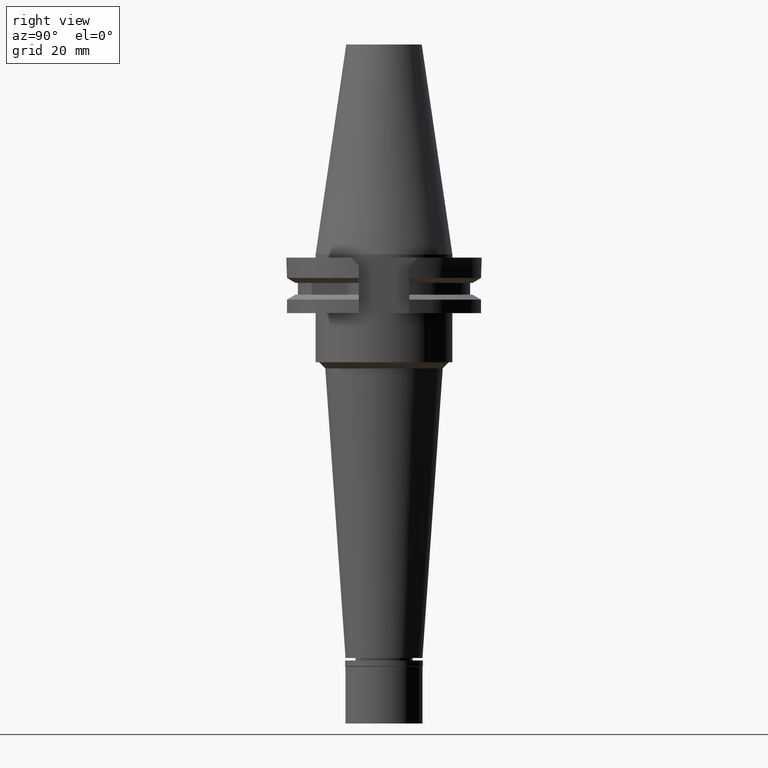
[diagram: clean part render]
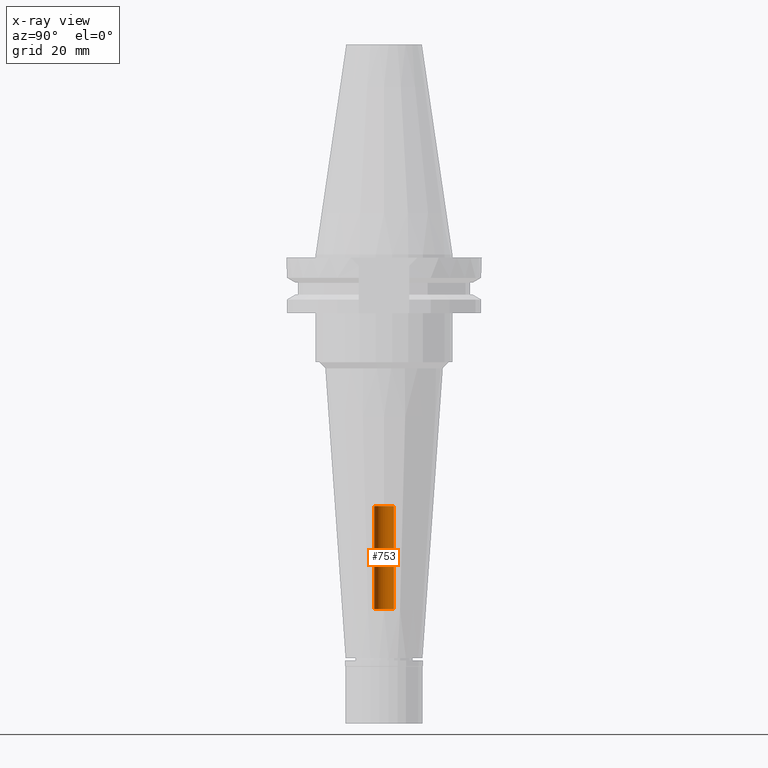
[diagram: x-ray — body ghosted, one internal face saturated and labeled with its STEP entity id]
A machine part, right view, then the same camera in x-ray: the body is ghosted and one INTERNAL B-rep face — a face not visible from any outside direction — is saturated and labeled: STEP entity #753.
In plain terms, the highlighted cylindrical surface (edge-blend (fillet) strip) has radius 3.2 mm, axis along (0, 0, -1).
Its self-contained STEP definition (entity closure, byte-faithful):
#34 = ORIENTED_EDGE ( 'NONE', *, *, #3211, .T. ) ;
#90 = ORIENTED_EDGE ( 'NONE', *, *, #1240, .T. ) ;
#227 = DIRECTION ( 'NONE',  ( 0.0000000000000000000, 0.0000000000000000000, -1.000000000000000000 ) ) ;
#499 = DIRECTION ( 'NONE',  ( 0.0000000000000000000, -1.000000000000000000, 0.0000000000000000000 ) ) ;
#723 = LINE ( 'NONE', #1482, #2876 ) ;
#729 = DIRECTION ( 'NONE',  ( 0.0000000000000000000, 1.000000000000000000, 0.0000000000000000000 ) ) ;
#753 = ADVANCED_FACE ( 'NONE', ( #3086 ), #3355, .F. ) ;
#762 = CARTESIAN_POINT ( 'NONE',  ( 0.0000000000000000000, 2.191780992603999821E-14, 78.97249999999999659 ) ) ;
#1000 = CARTESIAN_POINT ( 'NONE',  ( 0.0000000000000000000, 3.200000000000000178, -115.2000000000000028 ) ) ;
#1097 = DIRECTION ( 'NONE',  ( 0.0000000000000000000, -1.000000000000000000, 0.0000000000000000000 ) ) ;
#1123 = AXIS2_PLACEMENT_3D ( 'NONE', #762, #1805, #499 ) ;
#1187 = VECTOR ( 'NONE', #2833, 1000.000000000000000 ) ;
#1226 = CIRCLE ( 'NONE', #3231, 3.200000000000000178 ) ;
#1240 = EDGE_CURVE ( 'NONE', #2943, #2745, #1226, .T. ) ;
#1260 = VERTEX_POINT ( 'NONE', #2315 ) ;
#1482 = CARTESIAN_POINT ( 'NONE',  ( 0.0000000000000000000, 3.200000000000000178, -115.2000000000000028 ) ) ;
#1640 = CARTESIAN_POINT ( 'NONE',  ( 0.0000000000000000000, -3.200000000000000178, -81.75000000000000000 ) ) ;
#1733 = CARTESIAN_POINT ( 'NONE',  ( 0.0000000000000000000, -3.200000000000000178, -115.2000000000000028 ) ) ;
#1738 = DIRECTION ( 'NONE',  ( 0.0000000000000000000, 0.0000000000000000000, 1.000000000000000000 ) ) ;
#1785 = LINE ( 'NONE', #1733, #1187 ) ;
#1805 = DIRECTION ( 'NONE',  ( 0.0000000000000000000, 0.0000000000000000000, -1.000000000000000000 ) ) ;
#2056 = VERTEX_POINT ( 'NONE', #1000 ) ;
#2117 = ORIENTED_EDGE ( 'NONE', *, *, #2404, .T. ) ;
#2278 = CIRCLE ( 'NONE', #3300, 3.200000000000000178 ) ;
#2315 = CARTESIAN_POINT ( 'NONE',  ( 0.0000000000000000000, -3.200000000000000178, -115.2000000000000028 ) ) ;
#2404 = EDGE_CURVE ( 'NONE', #2056, #2943, #723, .T. ) ;
#2447 = CARTESIAN_POINT ( 'NONE',  ( 0.0000000000000000000, 3.200000000000000178, -81.75000000000000000 ) ) ;
#2534 = EDGE_LOOP ( 'NONE', ( #90, #2936, #34, #2117 ) ) ;
#2745 = VERTEX_POINT ( 'NONE', #1640 ) ;
#2833 = DIRECTION ( 'NONE',  ( 0.0000000000000000000, 0.0000000000000000000, 1.000000000000000000 ) ) ;
#2876 = VECTOR ( 'NONE', #1738, 1000.000000000000000 ) ;
#2916 = CARTESIAN_POINT ( 'NONE',  ( 0.0000000000000000000, 2.191780992603999821E-14, -115.2000000000000028 ) ) ;
#2936 = ORIENTED_EDGE ( 'NONE', *, *, #3099, .F. ) ;
#2943 = VERTEX_POINT ( 'NONE', #2447 ) ;
#3072 = CARTESIAN_POINT ( 'NONE',  ( 0.0000000000000000000, 2.191780992603999821E-14, -81.75000000000000000 ) ) ;
#3086 = FACE_OUTER_BOUND ( 'NONE', #2534, .T. ) ;
#3099 = EDGE_CURVE ( 'NONE', #1260, #2745, #1785, .T. ) ;
#3211 = EDGE_CURVE ( 'NONE', #1260, #2056, #2278, .T. ) ;
#3231 = AXIS2_PLACEMENT_3D ( 'NONE', #3072, #3341, #729 ) ;
#3300 = AXIS2_PLACEMENT_3D ( 'NONE', #2916, #227, #1097 ) ;
#3341 = DIRECTION ( 'NONE',  ( 0.0000000000000000000, 0.0000000000000000000, 1.000000000000000000 ) ) ;
#3355 = CYLINDRICAL_SURFACE ( 'NONE', #1123, 3.200000000000000178 ) ;